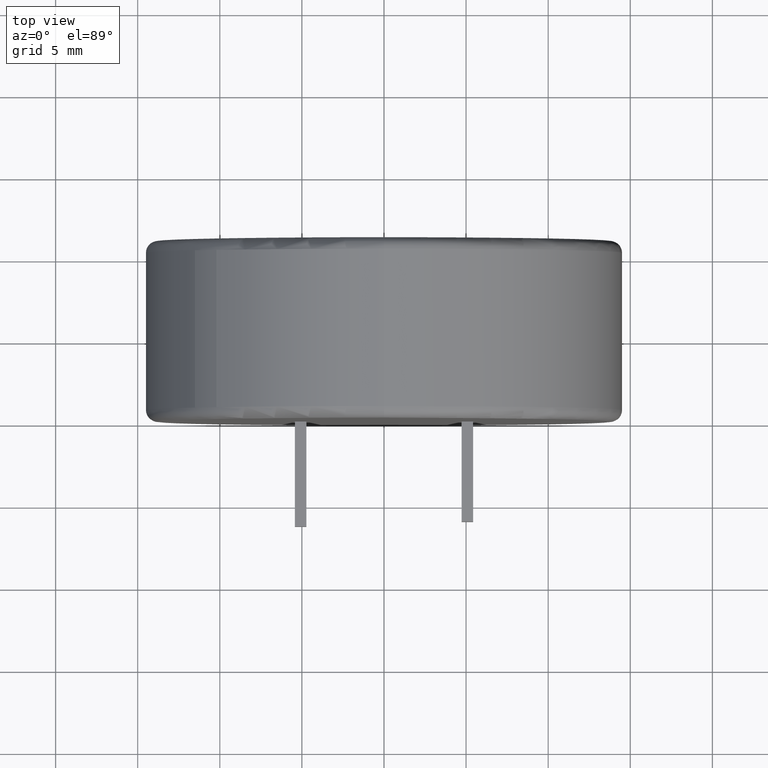
[diagram: clean part render]
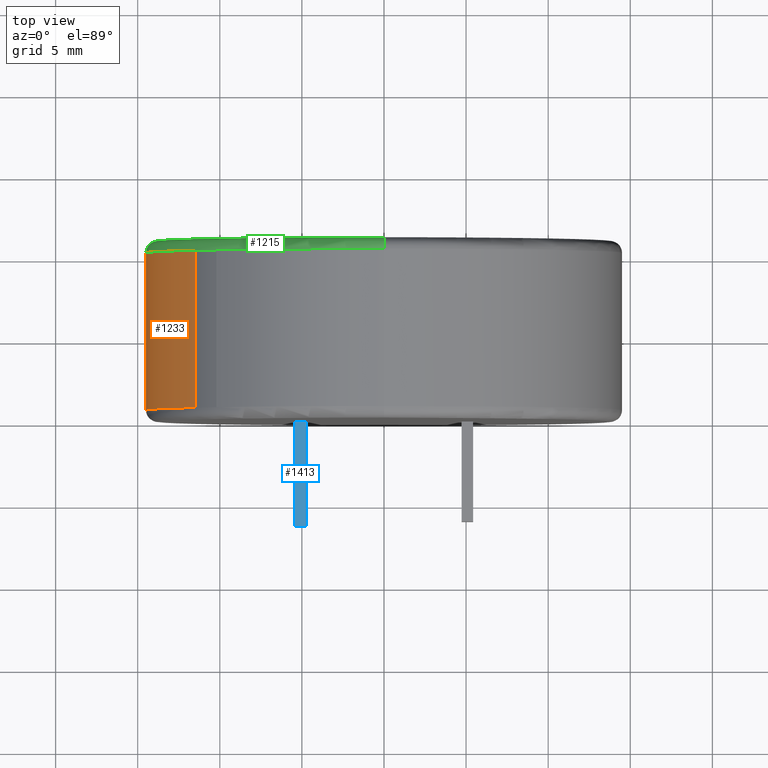
[diagram: same view with three faces highlighted in distinct colors, each labeled with its STEP entity id]
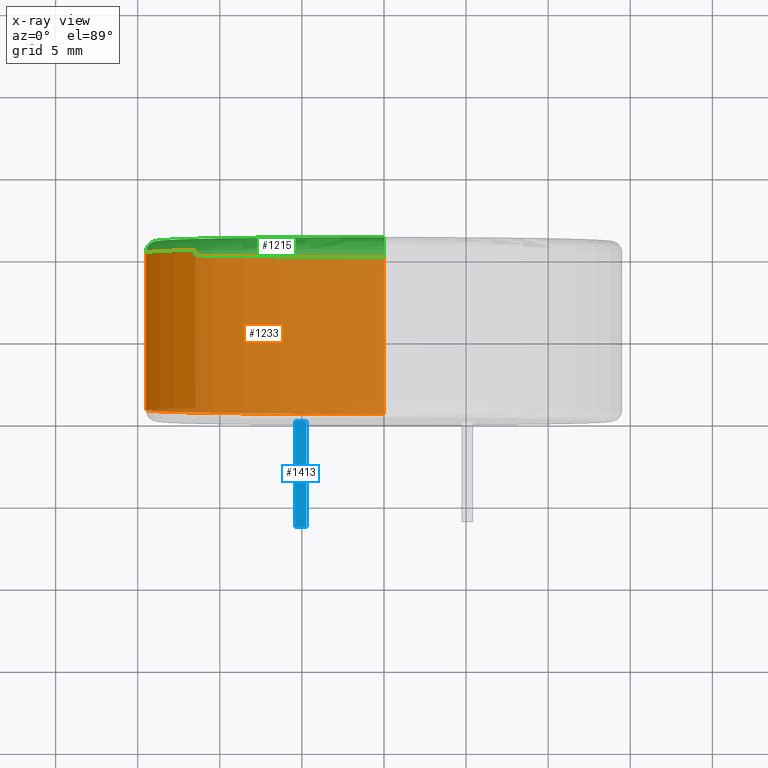
[diagram: x-ray of the same camera — body ghosted, the three highlighted faces saturated]
A machine part, top view with three faces highlighted in distinct colors.
The next image is the same camera in x-ray (body ghosted, the three faces saturated) — at least one of them is partly hidden behind the body in this view.
Their STEP definitions:

[orange] entity #1233 — the highlighted cylindrical surface (partial cylindrical patch) has radius 14.5 mm, axis along (-0, -1, -0).
#5 = EDGE_LOOP ( 'NONE', ( #1742, #2053, #954, #658 ) ) ;
#67 = VECTOR ( 'NONE', #2646, 1000.000000000000000 ) ;
#164 = AXIS2_PLACEMENT_3D ( 'NONE', #2433, #534, #1437 ) ;
#203 = VERTEX_POINT ( 'NONE', #1608 ) ;
#304 = LINE ( 'NONE', #1117, #627 ) ;
#409 = VERTEX_POINT ( 'NONE', #1099 ) ;
#417 = CARTESIAN_POINT ( 'NONE',  ( 0.0000000000000000000, 10.29050000000000000, 0.0000000000000000000 ) ) ;
#499 = AXIS2_PLACEMENT_3D ( 'NONE', #1565, #2194, #2202 ) ;
#520 = CARTESIAN_POINT ( 'NONE',  ( -11.50616822960726200, 10.29050000000000200, 8.823723288497692600 ) ) ;
#534 = DIRECTION ( 'NONE',  ( -0.0000000000000000000, -1.000000000000000000, -0.0000000000000000000 ) ) ;
#580 = CARTESIAN_POINT ( 'NONE',  ( -11.50616822960726200, 10.29050000000000000, 8.823723288497694400 ) ) ;
#627 = VECTOR ( 'NONE', #1087, 1000.000000000000000 ) ;
#658 = ORIENTED_EDGE ( 'NONE', *, *, #2677, .F. ) ;
#705 = CARTESIAN_POINT ( 'NONE',  ( -11.50616822960726400, 0.7095000000000000200, 8.823723288497689100 ) ) ;
#714 = CIRCLE ( 'NONE', #1346, 14.50000000000000000 ) ;
#911 = CYLINDRICAL_SURFACE ( 'NONE', #164, 14.50000000000000000 ) ;
#954 = ORIENTED_EDGE ( 'NONE', *, *, #2594, .T. ) ;
#1032 = DIRECTION ( 'NONE',  ( 8.881784197001252300E-016, 0.0000000000000000000, 1.000000000000000000 ) ) ;
#1087 = DIRECTION ( 'NONE',  ( -0.0000000000000000000, -1.000000000000000000, -0.0000000000000000000 ) ) ;
#1099 = CARTESIAN_POINT ( 'NONE',  ( 0.0000000000000000000, 10.29050000000000000, -14.50000000000000000 ) ) ;
#1117 = CARTESIAN_POINT ( 'NONE',  ( 0.0000000000000000000, 11.00000000000000000, -14.50000000000000000 ) ) ;
#1233 = ADVANCED_FACE ( 'NONE', ( #1480 ), #911, .T. ) ;
#1329 = EDGE_CURVE ( 'NONE', #2218, #409, #714, .T. ) ;
#1346 = AXIS2_PLACEMENT_3D ( 'NONE', #417, #2538, #1032 ) ;
#1437 = DIRECTION ( 'NONE',  ( 0.0000000000000000000, 0.0000000000000000000, -1.000000000000000000 ) ) ;
#1469 = EDGE_CURVE ( 'NONE', #409, #203, #304, .T. ) ;
#1480 = FACE_OUTER_BOUND ( 'NONE', #5, .T. ) ;
#1565 = CARTESIAN_POINT ( 'NONE',  ( 0.0000000000000000000, 0.7095000000000000200, 0.0000000000000000000 ) ) ;
#1608 = CARTESIAN_POINT ( 'NONE',  ( 0.0000000000000000000, 0.7095000000000000200, -14.50000000000000000 ) ) ;
#1742 = ORIENTED_EDGE ( 'NONE', *, *, #1329, .T. ) ;
#1884 = CIRCLE ( 'NONE', #499, 14.50000000000000000 ) ;
#2050 = VERTEX_POINT ( 'NONE', #705 ) ;
#2053 = ORIENTED_EDGE ( 'NONE', *, *, #1469, .T. ) ;
#2054 = LINE ( 'NONE', #520, #67 ) ;
#2194 = DIRECTION ( 'NONE',  ( 0.0000000000000000000, 1.000000000000000000, 0.0000000000000000000 ) ) ;
#2202 = DIRECTION ( 'NONE',  ( 0.0000000000000000000, 0.0000000000000000000, 1.000000000000000000 ) ) ;
#2218 = VERTEX_POINT ( 'NONE', #580 ) ;
#2433 = CARTESIAN_POINT ( 'NONE',  ( 0.0000000000000000000, 11.00000000000000000, 0.0000000000000000000 ) ) ;
#2538 = DIRECTION ( 'NONE',  ( -0.0000000000000000000, -1.000000000000000000, -0.0000000000000000000 ) ) ;
#2594 = EDGE_CURVE ( 'NONE', #203, #2050, #1884, .T. ) ;
#2646 = DIRECTION ( 'NONE',  ( 0.0000000000000000000, -1.000000000000000000, 0.0000000000000000000 ) ) ;
#2677 = EDGE_CURVE ( 'NONE', #2218, #2050, #2054, .T. ) ;

[blue] entity #1413 — the highlighted planar face has unit normal (-0, 0, 1).
#145 = DIRECTION ( 'NONE',  ( -0.0000000000000000000, 1.000000000000000000, -0.0000000000000000000 ) ) ;
#212 = ORIENTED_EDGE ( 'NONE', *, *, #1059, .T. ) ;
#233 = LINE ( 'NONE', #2269, #1834 ) ;
#251 = CARTESIAN_POINT ( 'NONE',  ( -5.429999999999999700, 0.0000000000000000000, 0.7499999999999991100 ) ) ;
#331 = VECTOR ( 'NONE', #795, 1000.000000000000000 ) ;
#362 = EDGE_CURVE ( 'NONE', #1937, #1688, #1764, .T. ) ;
#386 = VERTEX_POINT ( 'NONE', #251 ) ;
#408 = PLANE ( 'NONE',  #898 ) ;
#441 = VERTEX_POINT ( 'NONE', #929 ) ;
#537 = EDGE_LOOP ( 'NONE', ( #785, #1356, #591, #212 ) ) ;
#591 = ORIENTED_EDGE ( 'NONE', *, *, #362, .T. ) ;
#619 = CARTESIAN_POINT ( 'NONE',  ( -4.729999999999999500, -6.400000000000000400, 0.7499999999999992200 ) ) ;
#785 = ORIENTED_EDGE ( 'NONE', *, *, #975, .F. ) ;
#795 = DIRECTION ( 'NONE',  ( 1.000000000000000000, 0.0000000000000000000, 1.548860246407863300E-016 ) ) ;
#806 = CARTESIAN_POINT ( 'NONE',  ( -5.429999999999999700, -6.400000000000000400, 0.7499999999999991100 ) ) ;
#896 = CARTESIAN_POINT ( 'NONE',  ( -5.429999999999999700, -6.400000000000000400, 0.7499999999999991100 ) ) ;
#898 = AXIS2_PLACEMENT_3D ( 'NONE', #2097, #1465, #1678 ) ;
#929 = CARTESIAN_POINT ( 'NONE',  ( -4.729999999999999500, 0.0000000000000000000, 0.7499999999999992200 ) ) ;
#975 = EDGE_CURVE ( 'NONE', #386, #441, #1932, .T. ) ;
#1059 = EDGE_CURVE ( 'NONE', #1688, #441, #233, .T. ) ;
#1165 = EDGE_CURVE ( 'NONE', #1937, #386, #2629, .T. ) ;
#1356 = ORIENTED_EDGE ( 'NONE', *, *, #1165, .F. ) ;
#1413 = ADVANCED_FACE ( 'NONE', ( #1776 ), #408, .T. ) ;
#1465 = DIRECTION ( 'NONE',  ( -1.548860246407863300E-016, 0.0000000000000000000, 1.000000000000000000 ) ) ;
#1610 = VECTOR ( 'NONE', #1973, 1000.000000000000000 ) ;
#1678 = DIRECTION ( 'NONE',  ( 1.000000000000000000, 0.0000000000000000000, 1.548860246407863300E-016 ) ) ;
#1688 = VERTEX_POINT ( 'NONE', #619 ) ;
#1764 = LINE ( 'NONE', #2062, #331 ) ;
#1776 = FACE_OUTER_BOUND ( 'NONE', #537, .T. ) ;
#1834 = VECTOR ( 'NONE', #145, 1000.000000000000000 ) ;
#1932 = LINE ( 'NONE', #2446, #2760 ) ;
#1937 = VERTEX_POINT ( 'NONE', #896 ) ;
#1973 = DIRECTION ( 'NONE',  ( -0.0000000000000000000, 1.000000000000000000, -0.0000000000000000000 ) ) ;
#2062 = CARTESIAN_POINT ( 'NONE',  ( -5.429999999999999700, -6.400000000000000400, 0.7499999999999991100 ) ) ;
#2097 = CARTESIAN_POINT ( 'NONE',  ( -5.429999999999999700, -6.400000000000000400, 0.7499999999999991100 ) ) ;
#2269 = CARTESIAN_POINT ( 'NONE',  ( -4.729999999999999500, -6.400000000000000400, 0.7499999999999992200 ) ) ;
#2417 = DIRECTION ( 'NONE',  ( 1.000000000000000000, 0.0000000000000000000, 1.548860246407863300E-016 ) ) ;
#2446 = CARTESIAN_POINT ( 'NONE',  ( -5.429999999999999700, 0.0000000000000000000, 0.7499999999999991100 ) ) ;
#2629 = LINE ( 'NONE', #806, #1610 ) ;
#2760 = VECTOR ( 'NONE', #2417, 1000.000000000000000 ) ;

[green] entity #1215 — the highlighted toroidal blend (fillet) surface has major radius 13.7905 mm and minor (blend) radius 0.7095 mm.
#71 = CARTESIAN_POINT ( 'NONE',  ( 0.0000000000000000000, 10.29050000000000000, 0.0000000000000000000 ) ) ;
#77 = EDGE_CURVE ( 'NONE', #2135, #1970, #2719, .T. ) ;
#117 = CIRCLE ( 'NONE', #623, 14.50000000000000000 ) ;
#139 = ORIENTED_EDGE ( 'NONE', *, *, #1329, .F. ) ;
#163 = DIRECTION ( 'NONE',  ( -0.0000000000000000000, -1.000000000000000000, -0.0000000000000000000 ) ) ;
#194 = DIRECTION ( 'NONE',  ( -1.000000000000000000, 0.0000000000000000000, 0.0000000000000000000 ) ) ;
#310 = ORIENTED_EDGE ( 'NONE', *, *, #327, .F. ) ;
#327 = EDGE_CURVE ( 'NONE', #1482, #2218, #707, .T. ) ;
#347 = CARTESIAN_POINT ( 'NONE',  ( 0.0000000000000000000, 11.00000000000000000, 13.79050000000000200 ) ) ;
#399 = DIRECTION ( 'NONE',  ( -8.881784197001252300E-016, 0.0000000000000000000, 1.000000000000000000 ) ) ;
#407 = AXIS2_PLACEMENT_3D ( 'NONE', #1936, #1961, #1529 ) ;
#409 = VERTEX_POINT ( 'NONE', #1099 ) ;
#417 = CARTESIAN_POINT ( 'NONE',  ( 0.0000000000000000000, 10.29050000000000000, 0.0000000000000000000 ) ) ;
#451 = DIRECTION ( 'NONE',  ( 1.000000000000000000, -0.0000000000000000000, 1.224646799147353200E-016 ) ) ;
#473 = CARTESIAN_POINT ( 'NONE',  ( 1.688849168364157500E-015, 10.29050000000000000, -13.79050000000000200 ) ) ;
#494 = CIRCLE ( 'NONE', #2106, 13.79050000000000200 ) ;
#514 = EDGE_CURVE ( 'NONE', #2135, #1482, #117, .T. ) ;
#580 = CARTESIAN_POINT ( 'NONE',  ( -11.50616822960726200, 10.29050000000000000, 8.823723288497694400 ) ) ;
#623 = AXIS2_PLACEMENT_3D ( 'NONE', #71, #2232, #1149 ) ;
#634 = AXIS2_PLACEMENT_3D ( 'NONE', #473, #451, #655 ) ;
#638 = EDGE_CURVE ( 'NONE', #1253, #1970, #494, .T. ) ;
#653 = DIRECTION ( 'NONE',  ( 0.0000000000000000000, 0.0000000000000000000, 1.000000000000000000 ) ) ;
#655 = DIRECTION ( 'NONE',  ( 1.224646799147351700E-016, 0.0000000000000000000, -1.000000000000000000 ) ) ;
#707 = CIRCLE ( 'NONE', #1830, 14.50000000000000000 ) ;
#714 = CIRCLE ( 'NONE', #1346, 14.50000000000000000 ) ;
#842 = ORIENTED_EDGE ( 'NONE', *, *, #77, .T. ) ;
#999 = CIRCLE ( 'NONE', #634, 0.7095000000000000200 ) ;
#1009 = CARTESIAN_POINT ( 'NONE',  ( 1.732293513563909800E-015, 11.00000000000000000, -13.79050000000000200 ) ) ;
#1032 = DIRECTION ( 'NONE',  ( 8.881784197001252300E-016, 0.0000000000000000000, 1.000000000000000000 ) ) ;
#1099 = CARTESIAN_POINT ( 'NONE',  ( 0.0000000000000000000, 10.29050000000000000, -14.50000000000000000 ) ) ;
#1149 = DIRECTION ( 'NONE',  ( 0.0000000000000000000, 0.0000000000000000000, 1.000000000000000000 ) ) ;
#1197 = ORIENTED_EDGE ( 'NONE', *, *, #638, .F. ) ;
#1215 = ADVANCED_FACE ( 'NONE', ( #2103 ), #2692, .T. ) ;
#1253 = VERTEX_POINT ( 'NONE', #1009 ) ;
#1329 = EDGE_CURVE ( 'NONE', #2218, #409, #714, .T. ) ;
#1346 = AXIS2_PLACEMENT_3D ( 'NONE', #417, #2538, #1032 ) ;
#1398 = EDGE_LOOP ( 'NONE', ( #2162, #139, #310, #2642, #842, #1197 ) ) ;
#1482 = VERTEX_POINT ( 'NONE', #2593 ) ;
#1492 = CARTESIAN_POINT ( 'NONE',  ( 0.0000000000000000000, 11.00000000000000000, 0.0000000000000000000 ) ) ;
#1529 = DIRECTION ( 'NONE',  ( 0.0000000000000000000, 0.0000000000000000000, 1.000000000000000000 ) ) ;
#1713 = AXIS2_PLACEMENT_3D ( 'NONE', #2503, #194, #653 ) ;
#1830 = AXIS2_PLACEMENT_3D ( 'NONE', #1883, #163, #399 ) ;
#1883 = CARTESIAN_POINT ( 'NONE',  ( 0.0000000000000000000, 10.29050000000000000, 0.0000000000000000000 ) ) ;
#1888 = CARTESIAN_POINT ( 'NONE',  ( 1.775737858763662000E-015, 10.29050000000000000, 14.50000000000000000 ) ) ;
#1936 = CARTESIAN_POINT ( 'NONE',  ( 0.0000000000000000000, 10.29050000000000000, 0.0000000000000000000 ) ) ;
#1961 = DIRECTION ( 'NONE',  ( 0.0000000000000000000, 1.000000000000000000, 0.0000000000000000000 ) ) ;
#1970 = VERTEX_POINT ( 'NONE', #347 ) ;
#2103 = FACE_OUTER_BOUND ( 'NONE', #1398, .T. ) ;
#2106 = AXIS2_PLACEMENT_3D ( 'NONE', #1492, #2545, #2764 ) ;
#2135 = VERTEX_POINT ( 'NONE', #1888 ) ;
#2162 = ORIENTED_EDGE ( 'NONE', *, *, #2759, .F. ) ;
#2218 = VERTEX_POINT ( 'NONE', #580 ) ;
#2232 = DIRECTION ( 'NONE',  ( -0.0000000000000000000, -1.000000000000000000, -0.0000000000000000000 ) ) ;
#2503 = CARTESIAN_POINT ( 'NONE',  ( 0.0000000000000000000, 10.29050000000000000, 13.79050000000000200 ) ) ;
#2538 = DIRECTION ( 'NONE',  ( -0.0000000000000000000, -1.000000000000000000, -0.0000000000000000000 ) ) ;
#2545 = DIRECTION ( 'NONE',  ( 0.0000000000000000000, 1.000000000000000000, 0.0000000000000000000 ) ) ;
#2593 = CARTESIAN_POINT ( 'NONE',  ( -10.18367954714648200, 10.29050000000000000, 10.32195092417273800 ) ) ;
#2642 = ORIENTED_EDGE ( 'NONE', *, *, #514, .F. ) ;
#2692 = TOROIDAL_SURFACE ( 'NONE', #407, 13.79050000000000200, 0.7095000000000000200 ) ;
#2719 = CIRCLE ( 'NONE', #1713, 0.7095000000000000200 ) ;
#2759 = EDGE_CURVE ( 'NONE', #409, #1253, #999, .T. ) ;
#2764 = DIRECTION ( 'NONE',  ( 0.0000000000000000000, 0.0000000000000000000, 1.000000000000000000 ) ) ;